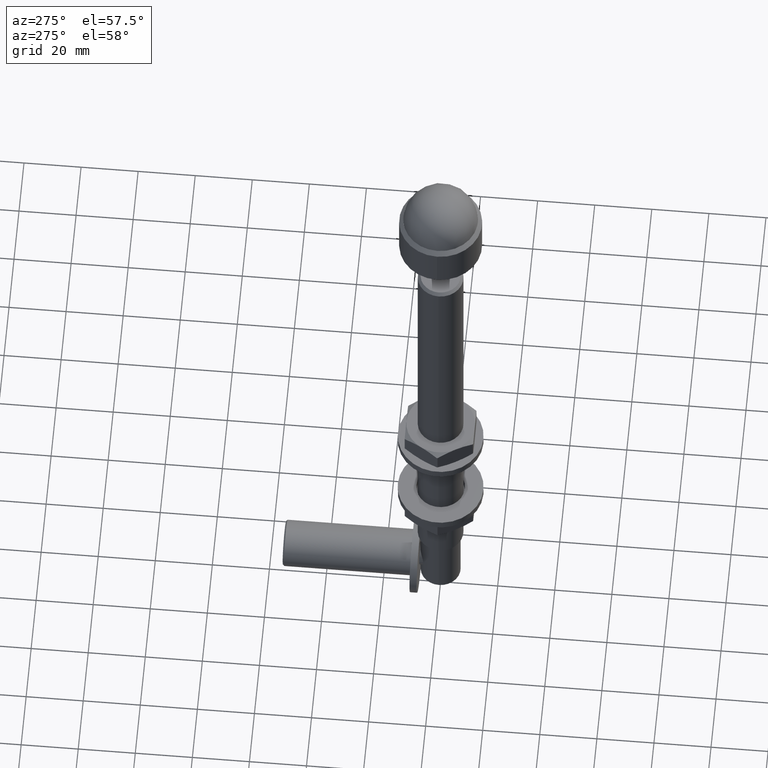
[diagram: clean part render]
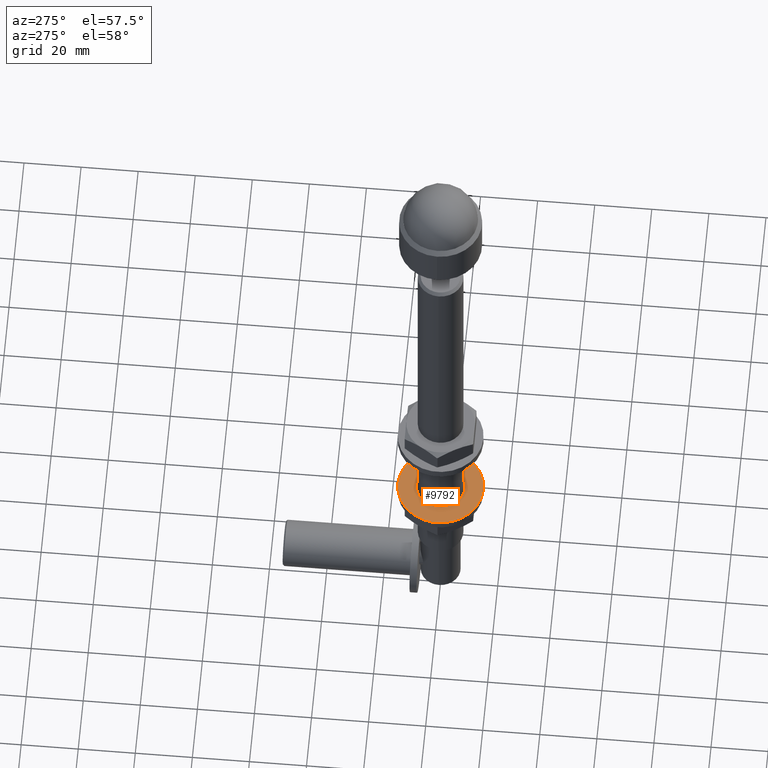
[diagram: same view with one face highlighted and labeled with its STEP entity id]
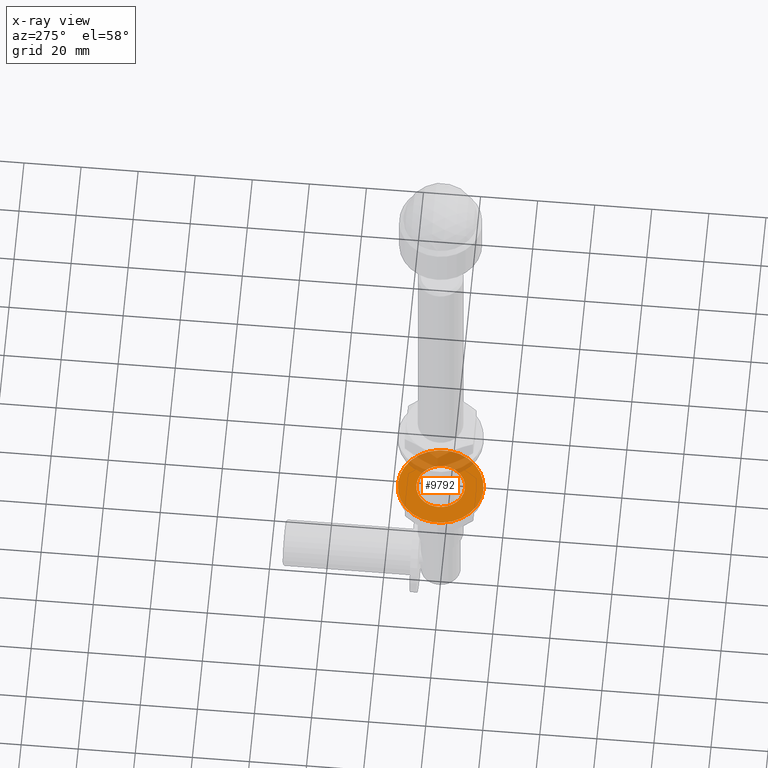
[diagram: x-ray of the same camera — body ghosted, the highlighted face saturated]
A machine part, auxiliary view. The second image highlights one B-rep face of the part: STEP entity #9792.
The next image is the same camera in x-ray: the body ghosted, the highlighted face saturated — about 28% of this face is hidden behind the body in this view.
In plain terms, the highlighted planar face has unit normal (0, 0, -1).
Its self-contained STEP definition (entity closure, byte-faithful):
#151 = ORIENTED_EDGE ( 'NONE', *, *, #7510, .T. ) ;
#500 = DIRECTION ( 'NONE',  ( 0.000000000000000000, 1.000000000000000000, 0.000000000000000000 ) ) ;
#1098 = CARTESIAN_POINT ( 'NONE',  ( 0.000000000000000000, 0.000000000000000000, 8.500000000000000000 ) ) ;
#1139 = VERTEX_POINT ( 'NONE', #6987 ) ;
#2085 = ORIENTED_EDGE ( 'NONE', *, *, #15220, .F. ) ;
#2381 = CARTESIAN_POINT ( 'NONE',  ( 0.000000000000000000, 0.000000000000000000, 0.000000000000000000 ) ) ;
#2813 = PLANE ( 'NONE',  #15166 ) ;
#3913 = FACE_BOUND ( 'NONE', #4200, .T. ) ;
#3981 = DIRECTION ( 'NONE',  ( 0.000000000000000000, 0.000000000000000000, 1.000000000000000000 ) ) ;
#4200 = EDGE_LOOP ( 'NONE', ( #151 ) ) ;
#4788 = DIRECTION ( 'NONE',  ( 0.000000000000000000, 0.000000000000000000, 1.000000000000000000 ) ) ;
#4836 = DIRECTION ( 'NONE',  ( 0.000000000000000000, 1.000000000000000000, 0.000000000000000000 ) ) ;
#6322 = EDGE_LOOP ( 'NONE', ( #2085 ) ) ;
#6359 = CARTESIAN_POINT ( 'NONE',  ( 0.000000000000000000, 0.000000000000000000, 0.000000000000000000 ) ) ;
#6443 = CARTESIAN_POINT ( 'NONE',  ( 0.000000000000000000, 0.000000000000000000, 0.000000000000000000 ) ) ;
#6987 = CARTESIAN_POINT ( 'NONE',  ( 0.000000000000000000, 0.000000000000000000, 15.00000000000000000 ) ) ;
#7029 = CIRCLE ( 'NONE', #13180, 8.500000000000000000 ) ;
#7510 = EDGE_CURVE ( 'NONE', #7712, #7712, #7029, .T. ) ;
#7712 = VERTEX_POINT ( 'NONE', #1098 ) ;
#8230 = FACE_OUTER_BOUND ( 'NONE', #6322, .T. ) ;
#8751 = DIRECTION ( 'NONE',  ( 0.000000000000000000, 1.000000000000000000, 0.000000000000000000 ) ) ;
#9792 = ADVANCED_FACE ( 'NONE', ( #8230, #3913 ), #2813, .F. ) ;
#11241 = DIRECTION ( 'NONE',  ( 0.000000000000000000, -0.000000000000000000, 1.000000000000000000 ) ) ;
#13180 = AXIS2_PLACEMENT_3D ( 'NONE', #6359, #8751, #3981 ) ;
#13328 = AXIS2_PLACEMENT_3D ( 'NONE', #2381, #4836, #4788 ) ;
#13896 = CIRCLE ( 'NONE', #13328, 15.00000000000000000 ) ;
#15166 = AXIS2_PLACEMENT_3D ( 'NONE', #6443, #500, #11241 ) ;
#15220 = EDGE_CURVE ( 'NONE', #1139, #1139, #13896, .T. ) ;